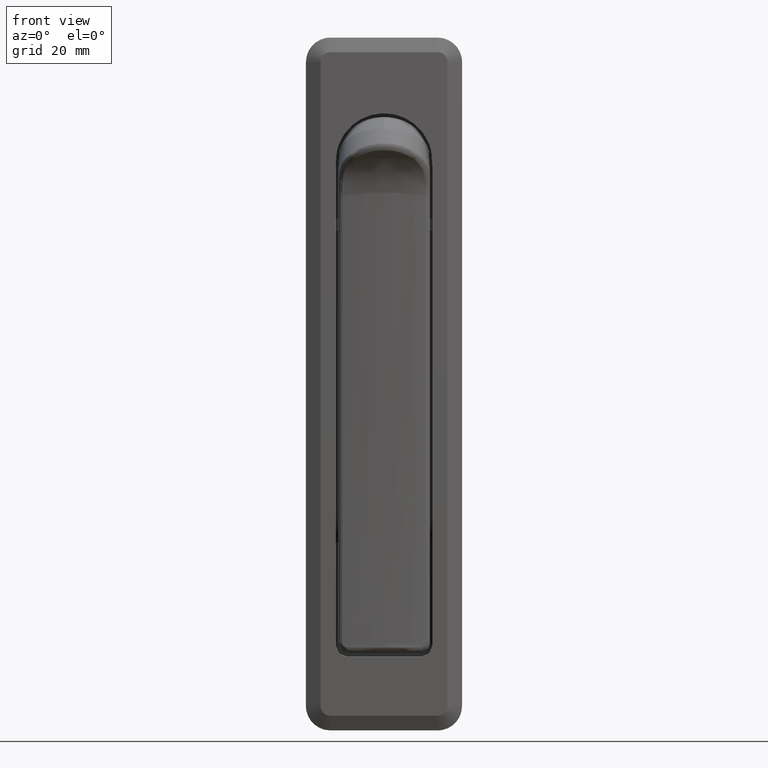
[diagram: clean part render]
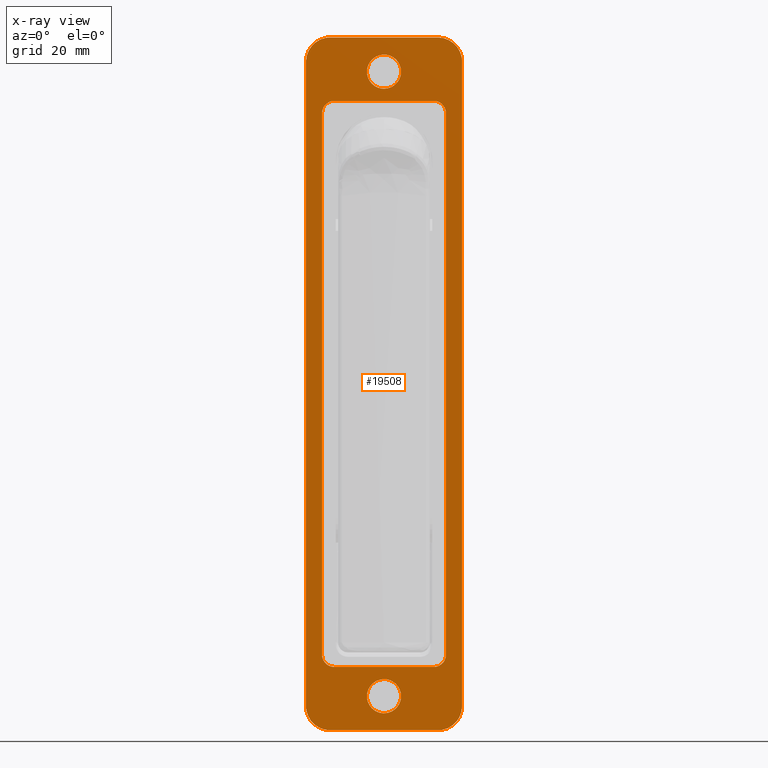
[diagram: x-ray — body ghosted, one internal face saturated and labeled with its STEP entity id]
A machine part, front view, then the same camera in x-ray: the body is ghosted and one INTERNAL B-rep face — a face not visible from any outside direction — is saturated and labeled: STEP entity #19508.
In plain terms, the highlighted face is a freeform B-spline surface patch.
Its self-contained STEP definition (entity closure, byte-faithful):
#12761=CARTESIAN_POINT('',(-7.632783E-017,-3.493471794423446,-109.713669889237100));
#12762=VERTEX_POINT('',#12761);
#12768=CARTESIAN_POINT('',(0.0,0.0,-112.999999999999800));
#12769=VERTEX_POINT('',#12768);
#12770=CARTESIAN_POINT('',(0.0,0.0,-112.999999999999800));
#12771=CARTESIAN_POINT('',(0.0,-3.292471232536015,-112.999999999999820));
#12772=CARTESIAN_POINT('',(-7.632783E-017,-3.493471794423445,-109.713669889237070));
#12780=(BOUNDED_CURVE()B_SPLINE_CURVE(2,(#12770,#12771,#12772),.UNSPECIFIED.,.F.,.U.)B_SPLINE_CURVE_WITH_KNOTS((3,3),(0.500000000000000,0.739332962156509),.UNSPECIFIED.)CURVE()GEOMETRIC_REPRESENTATION_ITEM()RATIONAL_B_SPLINE_CURVE((1.0,0.719603993383288,0.976072041490046))REPRESENTATION_ITEM(''));
#12781=EDGE_CURVE('',#12769,#12762,#12780,.T.);
#12783=CARTESIAN_POINT('',(-7.656506E-017,1.230663182926652,-112.776502423345310));
#12784=VERTEX_POINT('',#12783);
#12785=CARTESIAN_POINT('',(-7.656506E-017,1.230663182926652,-112.776502423345310));
#12786=CARTESIAN_POINT('',(0.0,0.635626151983935,-112.999999999999840));
#12787=CARTESIAN_POINT('',(0.0,0.0,-112.999999999999800));
#12795=(BOUNDED_CURVE()B_SPLINE_CURVE(2,(#12785,#12786,#12787),.UNSPECIFIED.,.F.,.U.)B_SPLINE_CURVE_WITH_KNOTS((3,3),(0.440284144620751,0.500000000000000),.UNSPECIFIED.)CURVE()GEOMETRIC_REPRESENTATION_ITEM()RATIONAL_B_SPLINE_CURVE((0.893499522477544,0.930038523615092,1.0))REPRESENTATION_ITEM(''));
#12796=EDGE_CURVE('',#12784,#12769,#12795,.T.);
#12846=CARTESIAN_POINT('',(0.0,0.0,-106.000000000000200));
#12847=VERTEX_POINT('',#12846);
#12848=CARTESIAN_POINT('',(0.0,0.0,-106.000000000000200));
#12849=CARTESIAN_POINT('',(0.0,3.499999999999825,-106.000000000000180));
#12850=CARTESIAN_POINT('',(0.0,3.499999999999826,-109.500000000000000));
#12851=CARTESIAN_POINT('',(0.0,3.499999999999825,-111.924133154116490));
#12852=CARTESIAN_POINT('',(-7.656506E-017,1.230663182926652,-112.776502423345330));
#12860=(BOUNDED_CURVE()B_SPLINE_CURVE(2,(#12848,#12849,#12850,#12851,#12852),.UNSPECIFIED.,.F.,.U.)B_SPLINE_CURVE_WITH_KNOTS((3,2,3),(0.0,0.250000000000000,0.440284144620751),.UNSPECIFIED.)CURVE()GEOMETRIC_REPRESENTATION_ITEM()RATIONAL_B_SPLINE_CURVE((1.0,0.707106781186548,1.0,0.777068257571455,0.893499522477544))REPRESENTATION_ITEM(''));
#12861=EDGE_CURVE('',#12847,#12784,#12860,.T.);
#12863=CARTESIAN_POINT('',(-7.632783E-017,-3.493471794423446,-109.713669889237110));
#12864=CARTESIAN_POINT('',(0.0,-3.499999999999826,-109.606934672412590));
#12865=CARTESIAN_POINT('',(0.0,-3.499999999999826,-109.500000000000000));
#12866=CARTESIAN_POINT('',(0.0,-3.499999999999825,-106.000000000000180));
#12867=CARTESIAN_POINT('',(0.0,0.0,-106.000000000000200));
#12875=(BOUNDED_CURVE()B_SPLINE_CURVE(2,(#12863,#12864,#12865,#12866,#12867),.UNSPECIFIED.,.F.,.U.)B_SPLINE_CURVE_WITH_KNOTS((3,2,3),(0.739332962156509,0.750000000000000,1.0),.UNSPECIFIED.)CURVE()GEOMETRIC_REPRESENTATION_ITEM()RATIONAL_B_SPLINE_CURVE((0.976072041490045,0.987502787803260,1.0,0.707106781186548,1.0))REPRESENTATION_ITEM(''));
#12876=EDGE_CURVE('',#12762,#12847,#12875,.T.);
#13089=CARTESIAN_POINT('',(-7.632783E-017,-3.493471794423451,18.286330110762890));
#13090=VERTEX_POINT('',#13089);
#13096=CARTESIAN_POINT('',(0.0,0.0,15.000000000000171));
#13097=VERTEX_POINT('',#13096);
#13098=CARTESIAN_POINT('',(0.0,0.0,15.000000000000171));
#13099=CARTESIAN_POINT('',(0.0,-3.292471232536061,15.000000000000169));
#13100=CARTESIAN_POINT('',(-7.632783E-017,-3.493471794423451,18.286330110762893));
#13108=(BOUNDED_CURVE()B_SPLINE_CURVE(2,(#13098,#13099,#13100),.UNSPECIFIED.,.F.,.U.)B_SPLINE_CURVE_WITH_KNOTS((3,3),(0.500000000000000,0.739332962156511),.UNSPECIFIED.)CURVE()GEOMETRIC_REPRESENTATION_ITEM()RATIONAL_B_SPLINE_CURVE((1.0,0.719603993383285,0.976072041490051))REPRESENTATION_ITEM(''));
#13109=EDGE_CURVE('',#13097,#13090,#13108,.T.);
#13111=CARTESIAN_POINT('',(-7.656506E-017,1.230663182926656,15.223497576654710));
#13112=VERTEX_POINT('',#13111);
#13113=CARTESIAN_POINT('',(-7.656506E-017,1.230663182926656,15.223497576654713));
#13114=CARTESIAN_POINT('',(0.0,0.635626151983939,15.000000000000169));
#13115=CARTESIAN_POINT('',(0.0,0.0,15.000000000000171));
#13123=(BOUNDED_CURVE()B_SPLINE_CURVE(2,(#13113,#13114,#13115),.UNSPECIFIED.,.F.,.U.)B_SPLINE_CURVE_WITH_KNOTS((3,3),(0.440284144620751,0.500000000000000),.UNSPECIFIED.)CURVE()GEOMETRIC_REPRESENTATION_ITEM()RATIONAL_B_SPLINE_CURVE((0.893499522477544,0.930038523615092,1.0))REPRESENTATION_ITEM(''));
#13124=EDGE_CURVE('',#13112,#13097,#13123,.T.);
#13174=CARTESIAN_POINT('',(0.0,0.0,21.999999999999829));
#13175=VERTEX_POINT('',#13174);
#13176=CARTESIAN_POINT('',(0.0,0.0,21.999999999999829));
#13177=CARTESIAN_POINT('',(0.0,3.499999999999830,21.999999999999833));
#13178=CARTESIAN_POINT('',(0.0,3.499999999999830,18.500000000000000));
#13179=CARTESIAN_POINT('',(0.0,3.499999999999830,16.075866845883489));
#13180=CARTESIAN_POINT('',(-7.656506E-017,1.230663182926656,15.223497576654713));
#13188=(BOUNDED_CURVE()B_SPLINE_CURVE(2,(#13176,#13177,#13178,#13179,#13180),.UNSPECIFIED.,.F.,.U.)B_SPLINE_CURVE_WITH_KNOTS((3,2,3),(0.0,0.250000000000000,0.440284144620751),.UNSPECIFIED.)CURVE()GEOMETRIC_REPRESENTATION_ITEM()RATIONAL_B_SPLINE_CURVE((1.0,0.707106781186548,1.0,0.777068257571455,0.893499522477544))REPRESENTATION_ITEM(''));
#13189=EDGE_CURVE('',#13175,#13112,#13188,.T.);
#13191=CARTESIAN_POINT('',(-7.632783E-017,-3.493471794423452,18.286330110762897));
#13192=CARTESIAN_POINT('',(0.0,-3.499999999999830,18.393065327587401));
#13193=CARTESIAN_POINT('',(0.0,-3.499999999999830,18.500000000000000));
#13194=CARTESIAN_POINT('',(0.0,-3.499999999999830,21.999999999999833));
#13195=CARTESIAN_POINT('',(0.0,0.0,21.999999999999829));
#13203=(BOUNDED_CURVE()B_SPLINE_CURVE(2,(#13191,#13192,#13193,#13194,#13195),.UNSPECIFIED.,.F.,.U.)B_SPLINE_CURVE_WITH_KNOTS((3,2,3),(0.739332962156510,0.750000000000000,1.0),.UNSPECIFIED.)CURVE()GEOMETRIC_REPRESENTATION_ITEM()RATIONAL_B_SPLINE_CURVE((0.976072041490048,0.987502787803261,1.0,0.707106781186548,1.0))REPRESENTATION_ITEM(''));
#13204=EDGE_CURVE('',#13090,#13175,#13203,.T.);
#18595=CARTESIAN_POINT('',(0.0,10.199999999999999,12.500000000000000));
#18596=VERTEX_POINT('',#18595);
#18603=CARTESIAN_POINT('',(0.0,12.699999999999999,10.0));
#18604=VERTEX_POINT('',#18603);
#18610=CARTESIAN_POINT('',(0.0,12.699999999999999,10.0));
#18611=CARTESIAN_POINT('',(0.0,12.700000000000001,12.500000000000000));
#18612=CARTESIAN_POINT('',(0.0,10.199999999999999,12.500000000000000));
#18620=(BOUNDED_CURVE()B_SPLINE_CURVE(2,(#18610,#18611,#18612),.UNSPECIFIED.,.F.,.U.)CURVE()GEOMETRIC_REPRESENTATION_ITEM()QUASI_UNIFORM_CURVE()RATIONAL_B_SPLINE_CURVE((1.0,0.707106781186548,1.0))REPRESENTATION_ITEM(''));
#18621=EDGE_CURVE('',#18604,#18596,#18620,.T.);
#18633=CARTESIAN_POINT('',(0.0,12.699999999999999,-101.0));
#18634=VERTEX_POINT('',#18633);
#18640=CARTESIAN_POINT('',(0.0,12.699999999999999,-101.0));
#18641=CARTESIAN_POINT('',(0.0,12.699999999999999,10.0));
#18642=QUASI_UNIFORM_CURVE('',1,(#18640,#18641),.UNSPECIFIED.,.F.,.U.);
#18643=EDGE_CURVE('',#18634,#18604,#18642,.T.);
#18664=CARTESIAN_POINT('',(0.0,10.199999999999999,-103.500000000000000));
#18665=VERTEX_POINT('',#18664);
#18671=CARTESIAN_POINT('',(0.0,10.199999999999999,-103.500000000000000));
#18672=CARTESIAN_POINT('',(0.0,12.700000000000001,-103.500000000000000));
#18673=CARTESIAN_POINT('',(0.0,12.699999999999999,-101.0));
#18681=(BOUNDED_CURVE()B_SPLINE_CURVE(2,(#18671,#18672,#18673),.UNSPECIFIED.,.F.,.U.)CURVE()GEOMETRIC_REPRESENTATION_ITEM()QUASI_UNIFORM_CURVE()RATIONAL_B_SPLINE_CURVE((1.0,0.707106781186548,1.0))REPRESENTATION_ITEM(''));
#18682=EDGE_CURVE('',#18665,#18634,#18681,.T.);
#18696=CARTESIAN_POINT('',(0.0,-10.199999999999999,-103.500000000000000));
#18697=VERTEX_POINT('',#18696);
#18703=CARTESIAN_POINT('',(0.0,-10.199999999999999,-103.500000000000000));
#18704=CARTESIAN_POINT('',(0.0,10.199999999999999,-103.500000000000000));
#18705=QUASI_UNIFORM_CURVE('',1,(#18703,#18704),.UNSPECIFIED.,.F.,.U.);
#18706=EDGE_CURVE('',#18697,#18665,#18705,.T.);
#18727=CARTESIAN_POINT('',(0.0,-12.699999999999999,-101.0));
#18728=VERTEX_POINT('',#18727);
#18734=CARTESIAN_POINT('',(0.0,-12.699999999999999,-101.0));
#18735=CARTESIAN_POINT('',(0.0,-12.700000000000001,-103.500000000000000));
#18736=CARTESIAN_POINT('',(0.0,-10.199999999999999,-103.500000000000000));
#18744=(BOUNDED_CURVE()B_SPLINE_CURVE(2,(#18734,#18735,#18736),.UNSPECIFIED.,.F.,.U.)CURVE()GEOMETRIC_REPRESENTATION_ITEM()QUASI_UNIFORM_CURVE()RATIONAL_B_SPLINE_CURVE((1.0,0.707106781186548,1.0))REPRESENTATION_ITEM(''));
#18745=EDGE_CURVE('',#18728,#18697,#18744,.T.);
#18757=CARTESIAN_POINT('',(0.0,-12.699999999999999,10.0));
#18758=VERTEX_POINT('',#18757);
#18764=CARTESIAN_POINT('',(0.0,-12.699999999999999,10.0));
#18765=CARTESIAN_POINT('',(0.0,-12.699999999999999,-101.0));
#18766=QUASI_UNIFORM_CURVE('',1,(#18764,#18765),.UNSPECIFIED.,.F.,.U.);
#18767=EDGE_CURVE('',#18758,#18728,#18766,.T.);
#18788=CARTESIAN_POINT('',(0.0,-10.199999999999999,12.500000000000000));
#18789=VERTEX_POINT('',#18788);
#18795=CARTESIAN_POINT('',(0.0,-10.199999999999999,12.500000000000000));
#18796=CARTESIAN_POINT('',(0.0,-12.700000000000001,12.500000000000000));
#18797=CARTESIAN_POINT('',(0.0,-12.699999999999999,10.0));
#18805=(BOUNDED_CURVE()B_SPLINE_CURVE(2,(#18795,#18796,#18797),.UNSPECIFIED.,.F.,.U.)CURVE()GEOMETRIC_REPRESENTATION_ITEM()QUASI_UNIFORM_CURVE()RATIONAL_B_SPLINE_CURVE((1.0,0.707106781186548,1.0))REPRESENTATION_ITEM(''));
#18806=EDGE_CURVE('',#18789,#18758,#18805,.T.);
#18834=CARTESIAN_POINT('',(0.0,10.199999999999999,12.500000000000000));
#18835=CARTESIAN_POINT('',(0.0,-10.199999999999999,12.500000000000000));
#18836=QUASI_UNIFORM_CURVE('',1,(#18834,#18835),.UNSPECIFIED.,.F.,.U.);
#18837=EDGE_CURVE('',#18596,#18789,#18836,.T.);
#19241=CARTESIAN_POINT('',(0.0,16.0,20.500000000000000));
#19242=VERTEX_POINT('',#19241);
#19249=CARTESIAN_POINT('',(0.0,11.0,25.500000000000000));
#19250=VERTEX_POINT('',#19249);
#19256=CARTESIAN_POINT('',(0.0,16.0,20.500000000000000));
#19257=CARTESIAN_POINT('',(0.0,15.999999999999998,25.500000000000007));
#19258=CARTESIAN_POINT('',(0.0,11.0,25.500000000000000));
#19266=(BOUNDED_CURVE()B_SPLINE_CURVE(2,(#19256,#19257,#19258),.UNSPECIFIED.,.F.,.U.)CURVE()GEOMETRIC_REPRESENTATION_ITEM()QUASI_UNIFORM_CURVE()RATIONAL_B_SPLINE_CURVE((1.0,0.707106781186548,1.0))REPRESENTATION_ITEM(''));
#19267=EDGE_CURVE('',#19242,#19250,#19266,.T.);
#19277=CARTESIAN_POINT('',(0.0,16.0,-111.500000000000000));
#19278=VERTEX_POINT('',#19277);
#19286=CARTESIAN_POINT('',(0.0,16.0,-111.500000000000000));
#19287=CARTESIAN_POINT('',(0.0,16.0,20.500000000000000));
#19288=QUASI_UNIFORM_CURVE('',1,(#19286,#19287),.UNSPECIFIED.,.F.,.U.);
#19289=EDGE_CURVE('',#19278,#19242,#19288,.T.);
#19308=CARTESIAN_POINT('',(0.0,11.0,-116.500000000000000));
#19309=VERTEX_POINT('',#19308);
#19317=CARTESIAN_POINT('',(0.0,11.0,-116.500000000000000));
#19318=CARTESIAN_POINT('',(0.0,15.999999999999998,-116.500000000000010));
#19319=CARTESIAN_POINT('',(0.0,16.0,-111.500000000000000));
#19327=(BOUNDED_CURVE()B_SPLINE_CURVE(2,(#19317,#19318,#19319),.UNSPECIFIED.,.F.,.U.)CURVE()GEOMETRIC_REPRESENTATION_ITEM()QUASI_UNIFORM_CURVE()RATIONAL_B_SPLINE_CURVE((1.0,0.707106781186548,1.0))REPRESENTATION_ITEM(''));
#19328=EDGE_CURVE('',#19309,#19278,#19327,.T.);
#19338=CARTESIAN_POINT('',(0.0,-11.0,-116.500000000000000));
#19339=VERTEX_POINT('',#19338);
#19347=CARTESIAN_POINT('',(0.0,-11.0,-116.500000000000000));
#19348=CARTESIAN_POINT('',(0.0,11.0,-116.500000000000000));
#19349=QUASI_UNIFORM_CURVE('',1,(#19347,#19348),.UNSPECIFIED.,.F.,.U.);
#19350=EDGE_CURVE('',#19339,#19309,#19349,.T.);
#19369=CARTESIAN_POINT('',(0.0,-16.0,-111.500000000000000));
#19370=VERTEX_POINT('',#19369);
#19378=CARTESIAN_POINT('',(0.0,-16.0,-111.500000000000000));
#19379=CARTESIAN_POINT('',(0.0,-15.999999999999998,-116.500000000000010));
#19380=CARTESIAN_POINT('',(0.0,-11.0,-116.500000000000000));
#19388=(BOUNDED_CURVE()B_SPLINE_CURVE(2,(#19378,#19379,#19380),.UNSPECIFIED.,.F.,.U.)CURVE()GEOMETRIC_REPRESENTATION_ITEM()QUASI_UNIFORM_CURVE()RATIONAL_B_SPLINE_CURVE((1.0,0.707106781186548,1.0))REPRESENTATION_ITEM(''));
#19389=EDGE_CURVE('',#19370,#19339,#19388,.T.);
#19399=CARTESIAN_POINT('',(0.0,-16.0,20.500000000000000));
#19400=VERTEX_POINT('',#19399);
#19408=CARTESIAN_POINT('',(0.0,-16.0,20.500000000000000));
#19409=CARTESIAN_POINT('',(0.0,-16.0,-111.500000000000000));
#19410=QUASI_UNIFORM_CURVE('',1,(#19408,#19409),.UNSPECIFIED.,.F.,.U.);
#19411=EDGE_CURVE('',#19400,#19370,#19410,.T.);
#19430=CARTESIAN_POINT('',(0.0,-11.0,25.500000000000000));
#19431=VERTEX_POINT('',#19430);
#19439=CARTESIAN_POINT('',(0.0,-11.0,25.500000000000000));
#19440=CARTESIAN_POINT('',(0.0,-15.999999999999998,25.500000000000007));
#19441=CARTESIAN_POINT('',(0.0,-16.0,20.500000000000000));
#19449=(BOUNDED_CURVE()B_SPLINE_CURVE(2,(#19439,#19440,#19441),.UNSPECIFIED.,.F.,.U.)CURVE()GEOMETRIC_REPRESENTATION_ITEM()QUASI_UNIFORM_CURVE()RATIONAL_B_SPLINE_CURVE((1.0,0.707106781186548,1.0))REPRESENTATION_ITEM(''));
#19450=EDGE_CURVE('',#19431,#19400,#19449,.T.);
#19463=CARTESIAN_POINT('',(0.0,11.0,25.500000000000000));
#19464=CARTESIAN_POINT('',(0.0,-11.0,25.500000000000000));
#19465=QUASI_UNIFORM_CURVE('',1,(#19463,#19464),.UNSPECIFIED.,.F.,.U.);
#19466=EDGE_CURVE('',#19250,#19431,#19465,.T.);
#19471=CARTESIAN_POINT('',(0.0,-17.598399937977799,32.592899724776473));
#19472=CARTESIAN_POINT('',(0.0,17.598400796284679,32.592899724776473));
#19473=CARTESIAN_POINT('',(0.0,-17.598399937977799,-123.592903533513290));
#19474=CARTESIAN_POINT('',(0.0,17.598400796284679,-123.592903533513290));
#19475=B_SPLINE_SURFACE_WITH_KNOTS('',1,1,((#19471,#19473),(#19472,#19474)),.UNSPECIFIED.,.F.,.F.,.U.,(2,2),(2,2),(0.0,35.196800734262467),(0.0,156.185803258289810),.UNSPECIFIED.);
#19476=ORIENTED_EDGE('',*,*,#19466,.T.);
#19477=ORIENTED_EDGE('',*,*,#19450,.T.);
#19478=ORIENTED_EDGE('',*,*,#19411,.T.);
#19479=ORIENTED_EDGE('',*,*,#19389,.T.);
#19480=ORIENTED_EDGE('',*,*,#19350,.T.);
#19481=ORIENTED_EDGE('',*,*,#19328,.T.);
#19482=ORIENTED_EDGE('',*,*,#19289,.T.);
#19483=ORIENTED_EDGE('',*,*,#19267,.T.);
#19484=EDGE_LOOP('',(#19476,#19477,#19478,#19479,#19480,#19481,#19482,#19483));
#19485=FACE_OUTER_BOUND('',#19484,.T.);
#19486=ORIENTED_EDGE('',*,*,#18806,.F.);
#19487=ORIENTED_EDGE('',*,*,#18837,.F.);
#19488=ORIENTED_EDGE('',*,*,#18621,.F.);
#19489=ORIENTED_EDGE('',*,*,#18643,.F.);
#19490=ORIENTED_EDGE('',*,*,#18682,.F.);
#19491=ORIENTED_EDGE('',*,*,#18706,.F.);
#19492=ORIENTED_EDGE('',*,*,#18745,.F.);
#19493=ORIENTED_EDGE('',*,*,#18767,.F.);
#19494=EDGE_LOOP('',(#19486,#19487,#19488,#19489,#19490,#19491,#19492,#19493));
#19495=FACE_BOUND('',#19494,.T.);
#19496=ORIENTED_EDGE('',*,*,#13109,.T.);
#19497=ORIENTED_EDGE('',*,*,#13204,.T.);
#19498=ORIENTED_EDGE('',*,*,#13189,.T.);
#19499=ORIENTED_EDGE('',*,*,#13124,.T.);
#19500=EDGE_LOOP('',(#19496,#19497,#19498,#19499));
#19501=FACE_BOUND('',#19500,.T.);
#19502=ORIENTED_EDGE('',*,*,#12781,.T.);
#19503=ORIENTED_EDGE('',*,*,#12876,.T.);
#19504=ORIENTED_EDGE('',*,*,#12861,.T.);
#19505=ORIENTED_EDGE('',*,*,#12796,.T.);
#19506=EDGE_LOOP('',(#19502,#19503,#19504,#19505));
#19507=FACE_BOUND('',#19506,.T.);
#19508=ADVANCED_FACE('',(#19485,#19495,#19501,#19507),#19475,.F.);